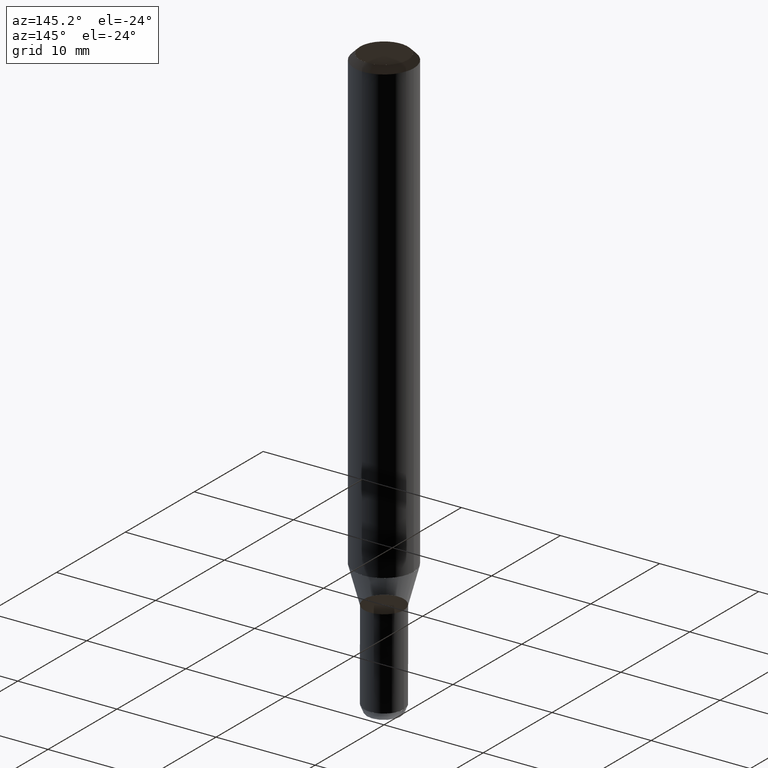
[diagram: clean part render]
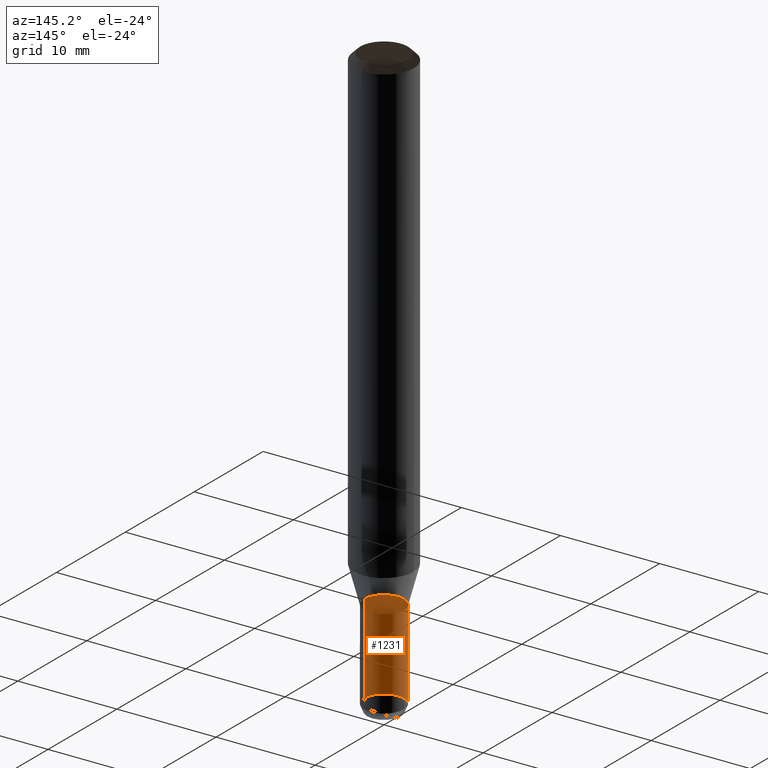
[diagram: same view with one face highlighted and labeled with its STEP entity id]
A machine part, auxiliary view. The second image highlights one B-rep face of the part: STEP entity #1231.
In plain terms, the highlighted face is a freeform B-spline surface patch.
Its self-contained STEP definition (entity closure, byte-faithful):
#1113=CARTESIAN_POINT('',(2.0,0.0,-12.732050807569));
#1114=CARTESIAN_POINT('',(2.0,2.0,-12.732050807569));
#1115=CARTESIAN_POINT('',(0.0,2.0,-12.732050807569));
#1116=CARTESIAN_POINT('',(-2.0,2.0,-12.732050807569));
#1117=CARTESIAN_POINT('',(-2.0,0.0,-12.732050807569));
#1118=CARTESIAN_POINT('',(2.0,0.0,-3.732050807569));
#1119=CARTESIAN_POINT('',(2.0,2.0,-3.732050807569));
#1120=CARTESIAN_POINT('',(0.0,2.0,-3.732050807569));
#1121=CARTESIAN_POINT('',(-2.0,2.0,-3.732050807569));
#1122=CARTESIAN_POINT('',(-2.0,0.0,-3.732050807569));
#1212=(
BOUNDED_SURFACE()
B_SPLINE_SURFACE(1,2,(
(#1113,#1114,#1115,#1116,#1117),
(#1118,#1119,#1120,#1121,#1122)
), .UNSPECIFIED.,.F.,.F.,.F.)
B_SPLINE_SURFACE_WITH_KNOTS((2,2),(3,2,3),(
0.0,1.0),(
0.0,0.5,1.0), .UNSPECIFIED.)
GEOMETRIC_REPRESENTATION_ITEM()
RATIONAL_B_SPLINE_SURFACE(((1.0,0.707106781187,1.0,0.707106781187,1.0),
(1.0,0.707106781187,1.0,0.707106781187,1.0)
))
REPRESENTATION_ITEM('')
SURFACE()
);
#1213=(
BOUNDED_CURVE()
B_SPLINE_CURVE(2,(#1118,#1119,#1120,#1121,#1122),.UNSPECIFIED.,.F.,.F.)
B_SPLINE_CURVE_WITH_KNOTS((3,2,3),
(0.0,0.5,1.0),.UNSPECIFIED.)
CURVE()
GEOMETRIC_REPRESENTATION_ITEM()
RATIONAL_B_SPLINE_CURVE((1.0,0.707106781187,1.0,0.707106781187,1.0))
REPRESENTATION_ITEM('')
);
#1214=(
BOUNDED_CURVE()
B_SPLINE_CURVE(1,(#1122,#1117),.UNSPECIFIED.,.F.,.F.)
B_SPLINE_CURVE_WITH_KNOTS((2,2),
(0.0,1.0),.UNSPECIFIED.)
CURVE()
GEOMETRIC_REPRESENTATION_ITEM()
RATIONAL_B_SPLINE_CURVE((1.0,1.0))
REPRESENTATION_ITEM('')
);
#1215=(
BOUNDED_CURVE()
B_SPLINE_CURVE(2,(#1117,#1116,#1115,#1114,#1113),.UNSPECIFIED.,.F.,.F.)
B_SPLINE_CURVE_WITH_KNOTS((3,2,3),
(0.0,0.5,1.0),.UNSPECIFIED.)
CURVE()
GEOMETRIC_REPRESENTATION_ITEM()
RATIONAL_B_SPLINE_CURVE((1.0,0.707106781187,1.0,0.707106781187,1.0))
REPRESENTATION_ITEM('')
);
#1216=(
BOUNDED_CURVE()
B_SPLINE_CURVE(1,(#1113,#1118),.UNSPECIFIED.,.F.,.F.)
B_SPLINE_CURVE_WITH_KNOTS((2,2),
(0.0,1.0),.UNSPECIFIED.)
CURVE()
GEOMETRIC_REPRESENTATION_ITEM()
RATIONAL_B_SPLINE_CURVE((1.0,1.0))
REPRESENTATION_ITEM('')
);
#1217=VERTEX_POINT('',#1113);
#1218=VERTEX_POINT('',#1117);
#1219=VERTEX_POINT('',#1118);
#1220=VERTEX_POINT('',#1122);
#1221=EDGE_CURVE('',#1219,#1220,#1213,.T.);
#1222=EDGE_CURVE('',#1220,#1218,#1214,.T.);
#1223=EDGE_CURVE('',#1218,#1217,#1215,.T.);
#1224=EDGE_CURVE('',#1217,#1219,#1216,.T.);
#1225=ORIENTED_EDGE('',*,*,#1221,.T.);
#1226=ORIENTED_EDGE('',*,*,#1222,.T.);
#1227=ORIENTED_EDGE('',*,*,#1223,.T.);
#1228=ORIENTED_EDGE('',*,*,#1224,.T.);
#1229=EDGE_LOOP('',(#1225,#1226,#1227,#1228));
#1230=FACE_OUTER_BOUND('',#1229,.T.);
#1231=ADVANCED_FACE('',(#1230),#1212,.T.);